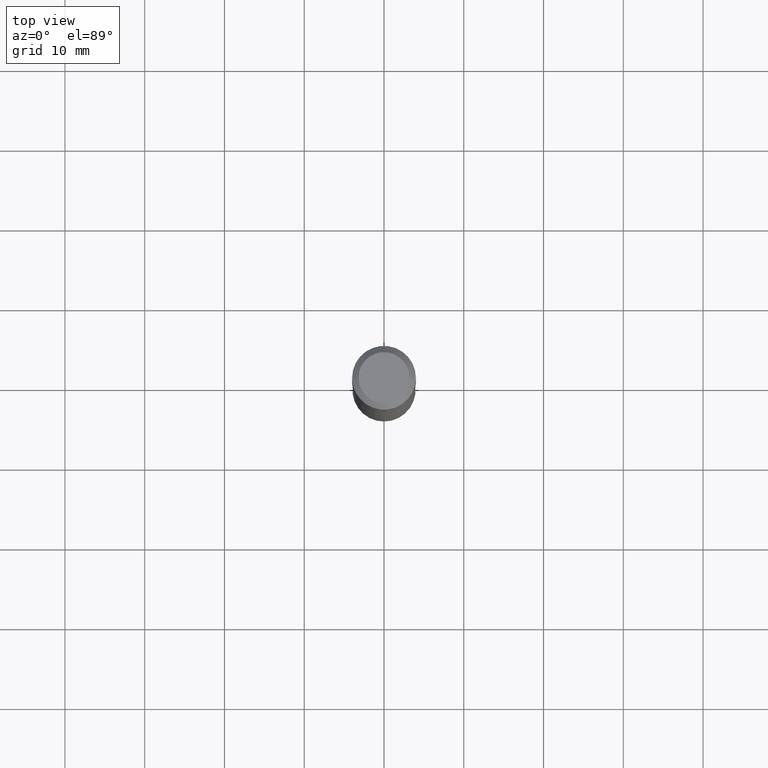
[diagram: clean part render]
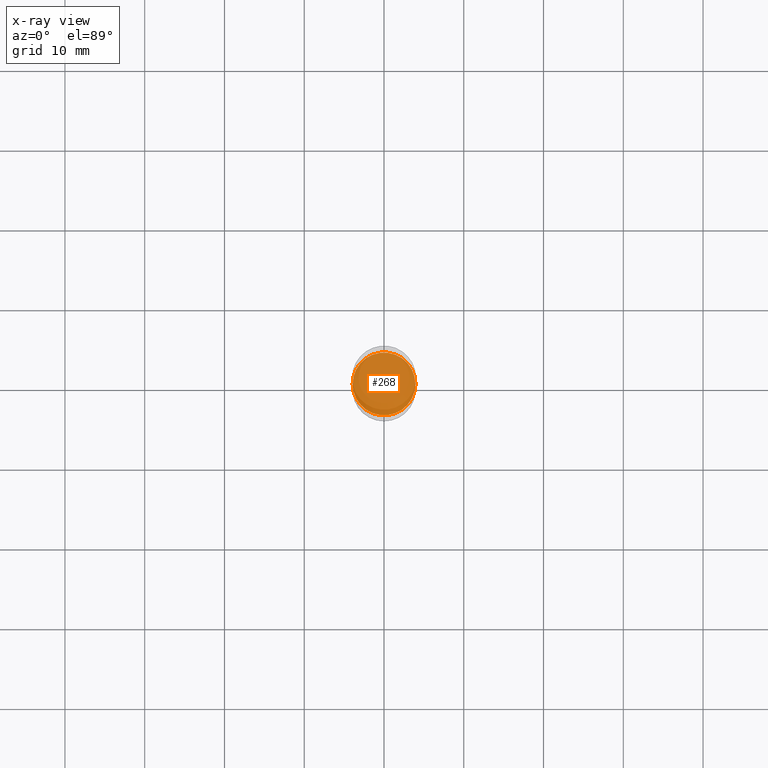
[diagram: x-ray — body ghosted, one internal face saturated and labeled with its STEP entity id]
A machine part, top view, then the same camera in x-ray: the body is ghosted and one INTERNAL B-rep face — a face not visible from any outside direction — is saturated and labeled: STEP entity #268.
In plain terms, the highlighted planar face has unit normal (-0, 0, 1).
Its self-contained STEP definition (entity closure, byte-faithful):
#80 = AXIS2_PLACEMENT_3D ( 'NONE', #153, #300, #450 ) ;
#107 = CARTESIAN_POINT ( 'NONE',  ( 0.1549999999999999989, -7.391815142464819923E-15, -1.807100000000000151 ) ) ;
#127 = EDGE_CURVE ( 'NONE', #276, #386, #460, .T. ) ;
#147 = AXIS2_PLACEMENT_3D ( 'NONE', #443, #447, #364 ) ;
#150 = PLANE ( 'NONE',  #147 ) ;
#153 = CARTESIAN_POINT ( 'NONE',  ( 4.419206679657160853E-29, -6.309455927423449056E-15, -1.807100000000000151 ) ) ;
#158 = ORIENTED_EDGE ( 'NONE', *, *, #127, .F. ) ;
#226 = CARTESIAN_POINT ( 'NONE',  ( -0.1549999999999999989, -5.205465459821182378E-15, -1.807100000000000151 ) ) ;
#248 = CIRCLE ( 'NONE', #80, 0.1549999999999999989 ) ;
#268 = ADVANCED_FACE ( 'NONE', ( #295 ), #150, .F. ) ;
#276 = VERTEX_POINT ( 'NONE', #107 ) ;
#280 = ORIENTED_EDGE ( 'NONE', *, *, #402, .F. ) ;
#292 = DIRECTION ( 'NONE',  ( 1.000000000000000000, -6.982962677686263555E-15, 0.000000000000000000 ) ) ;
#295 = FACE_OUTER_BOUND ( 'NONE', #359, .T. ) ;
#300 = DIRECTION ( 'NONE',  ( -2.445468806185136597E-29, 3.491481338843145583E-15, 1.000000000000000000 ) ) ;
#359 = EDGE_LOOP ( 'NONE', ( #158, #280 ) ) ;
#364 = DIRECTION ( 'NONE',  ( 1.000000000000000000, -6.982962677686265922E-15, 4.876176775795935793E-29 ) ) ;
#372 = AXIS2_PLACEMENT_3D ( 'NONE', #490, #409, #292 ) ;
#386 = VERTEX_POINT ( 'NONE', #226 ) ;
#402 = EDGE_CURVE ( 'NONE', #386, #276, #248, .T. ) ;
#409 = DIRECTION ( 'NONE',  ( -2.445468806185136597E-29, 3.491481338843145583E-15, 1.000000000000000000 ) ) ;
#443 = CARTESIAN_POINT ( 'NONE',  ( 4.419206679657160853E-29, -6.309455927423449056E-15, -1.807100000000000151 ) ) ;
#447 = DIRECTION ( 'NONE',  ( -2.438088387897960049E-29, 3.491481338843145188E-15, 1.000000000000000000 ) ) ;
#450 = DIRECTION ( 'NONE',  ( 1.000000000000000000, -6.982962677686263555E-15, 0.000000000000000000 ) ) ;
#460 = CIRCLE ( 'NONE', #372, 0.1549999999999999989 ) ;
#490 = CARTESIAN_POINT ( 'NONE',  ( 4.419206679657160853E-29, -6.309455927423449056E-15, -1.807100000000000151 ) ) ;